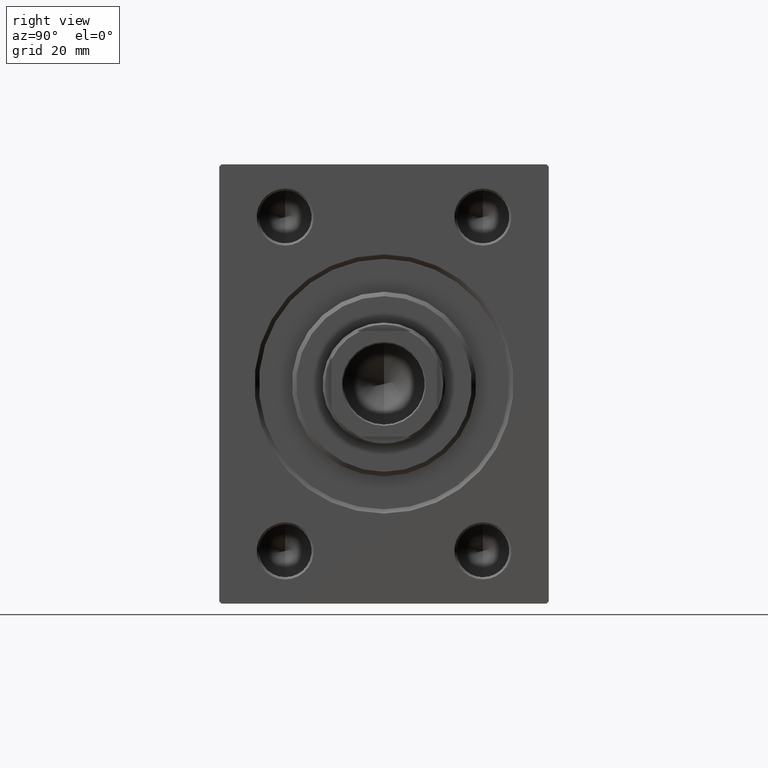
[diagram: clean part render]
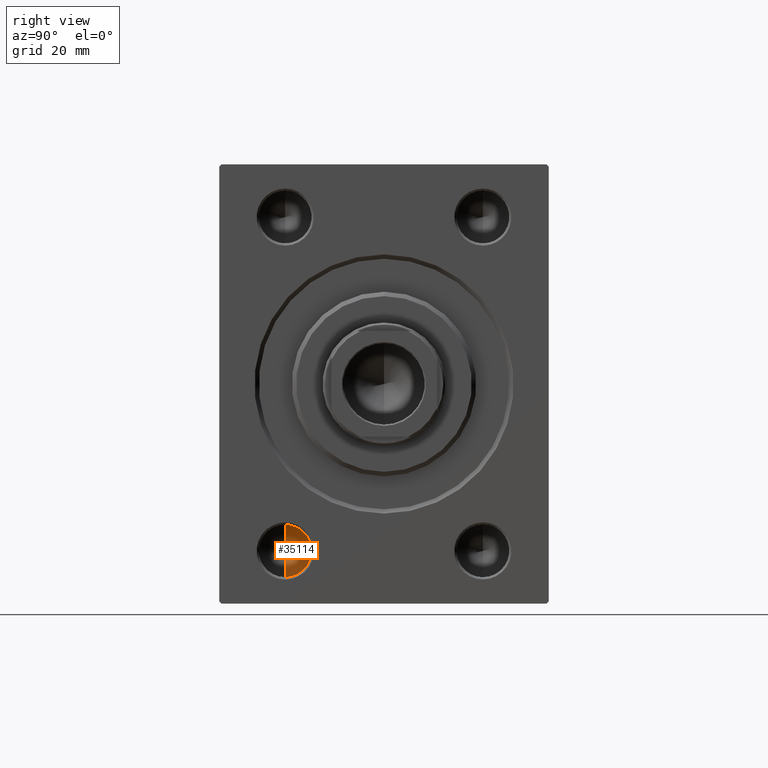
[diagram: same view with one face highlighted and labeled with its STEP entity id]
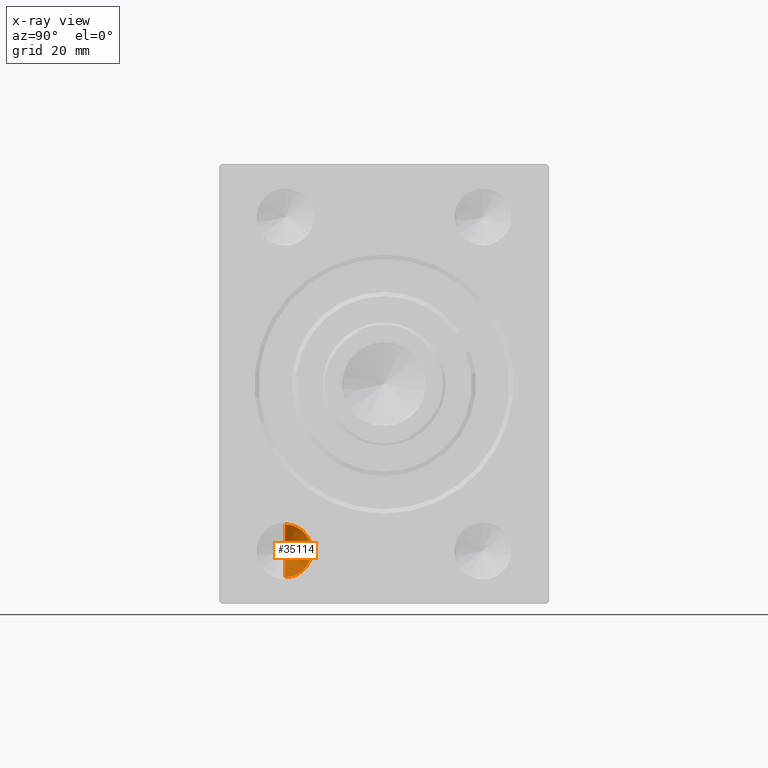
[diagram: x-ray of the same camera — body ghosted, the highlighted face saturated]
A machine part, right view. The second image highlights one B-rep face of the part: STEP entity #35114.
The next image is the same camera in x-ray: the body ghosted, the highlighted face saturated — about 0% of this face is hidden behind the body in this view.
In plain terms, the highlighted conical surface has half-angle 59 deg.
Its self-contained STEP definition (entity closure, byte-faithful):
#1870 = CARTESIAN_POINT ( 'NONE',  ( 20.00000000000000000, -22.50000000000000711, 32.00000000000000000 ) ) ;
#1997 = VECTOR ( 'NONE', #12046, 1000.000000000000000 ) ;
#3315 = DIRECTION ( 'NONE',  ( -1.000000000000000000, -0.000000000000000000, -0.000000000000000000 ) ) ;
#4663 = DIRECTION ( 'NONE',  ( -1.000000000000000000, -0.000000000000000000, -0.000000000000000000 ) ) ;
#5117 = CARTESIAN_POINT ( 'NONE',  ( 20.00000000000000000, -22.50000000000000711, 38.00000000000000000 ) ) ;
#5929 = ORIENTED_EDGE ( 'NONE', *, *, #33371, .T. ) ;
#8394 = VERTEX_POINT ( 'NONE', #36442 ) ;
#9435 = LINE ( 'NONE', #20354, #34806 ) ;
#11508 = CONICAL_SURFACE ( 'NONE', #36915, 5.999999999999998224, 1.029744258676653867 ) ;
#12046 = DIRECTION ( 'NONE',  ( -0.5150380749100547106, 0.000000000000000000, 0.8571673007021120005 ) ) ;
#12856 = DIRECTION ( 'NONE',  ( -0.5150380749100547106, 1.049727191138618326E-16, -0.8571673007021120005 ) ) ;
#15470 = CARTESIAN_POINT ( 'NONE',  ( 20.00000000000000000, -22.50000000000000711, 44.00000000000000000 ) ) ;
#15815 = DIRECTION ( 'NONE',  ( 0.000000000000000000, 0.000000000000000000, 1.000000000000000000 ) ) ;
#16346 = LINE ( 'NONE', #15470, #1997 ) ;
#18581 = EDGE_LOOP ( 'NONE', ( #25834, #5929, #30979 ) ) ;
#20354 = CARTESIAN_POINT ( 'NONE',  ( 20.00000000000000000, -22.50000000000000711, 32.00000000000000000 ) ) ;
#20861 = DIRECTION ( 'NONE',  ( 0.000000000000000000, 0.000000000000000000, 1.000000000000000000 ) ) ;
#24071 = CIRCLE ( 'NONE', #37096, 5.999999999999998224 ) ;
#25162 = VERTEX_POINT ( 'NONE', #33742 ) ;
#25834 = ORIENTED_EDGE ( 'NONE', *, *, #37893, .F. ) ;
#27224 = VERTEX_POINT ( 'NONE', #1870 ) ;
#27558 = EDGE_CURVE ( 'NONE', #8394, #27224, #24071, .T. ) ;
#30979 = ORIENTED_EDGE ( 'NONE', *, *, #27558, .T. ) ;
#33371 = EDGE_CURVE ( 'NONE', #25162, #8394, #16346, .T. ) ;
#33742 = CARTESIAN_POINT ( 'NONE',  ( 23.60516371416536074, -22.50000000000001421, 38.00000000000000000 ) ) ;
#34806 = VECTOR ( 'NONE', #12856, 1000.000000000000000 ) ;
#35114 = ADVANCED_FACE ( 'NONE', ( #36280 ), #11508, .F. ) ;
#36280 = FACE_OUTER_BOUND ( 'NONE', #18581, .T. ) ;
#36442 = CARTESIAN_POINT ( 'NONE',  ( 20.00000000000000000, -22.50000000000000711, 44.00000000000000000 ) ) ;
#36915 = AXIS2_PLACEMENT_3D ( 'NONE', #5117, #4663, #15815 ) ;
#37096 = AXIS2_PLACEMENT_3D ( 'NONE', #44522, #3315, #20861 ) ;
#37893 = EDGE_CURVE ( 'NONE', #25162, #27224, #9435, .T. ) ;
#44522 = CARTESIAN_POINT ( 'NONE',  ( 20.00000000000000000, -22.50000000000000711, 38.00000000000000000 ) ) ;